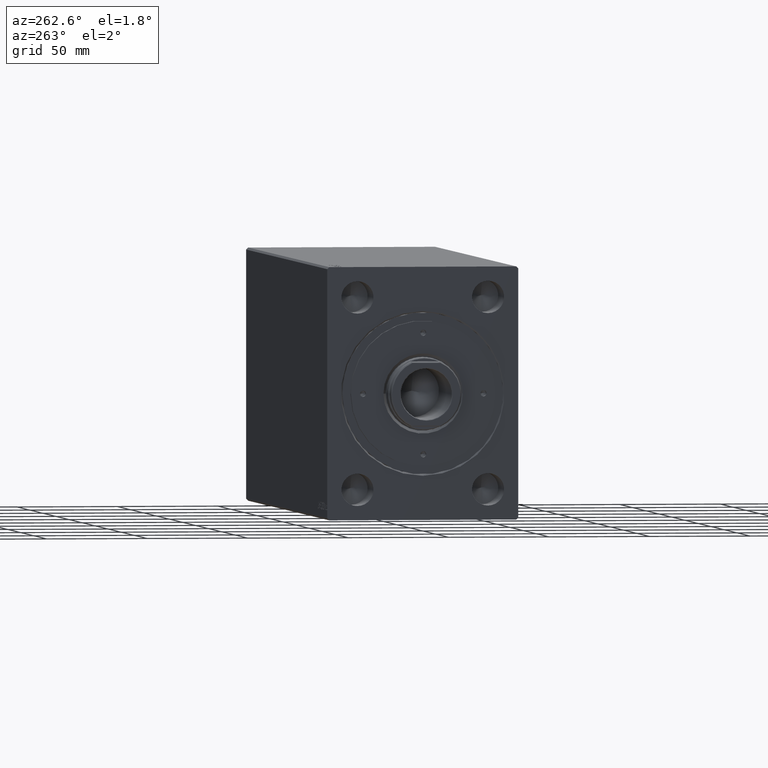
[diagram: clean part render]
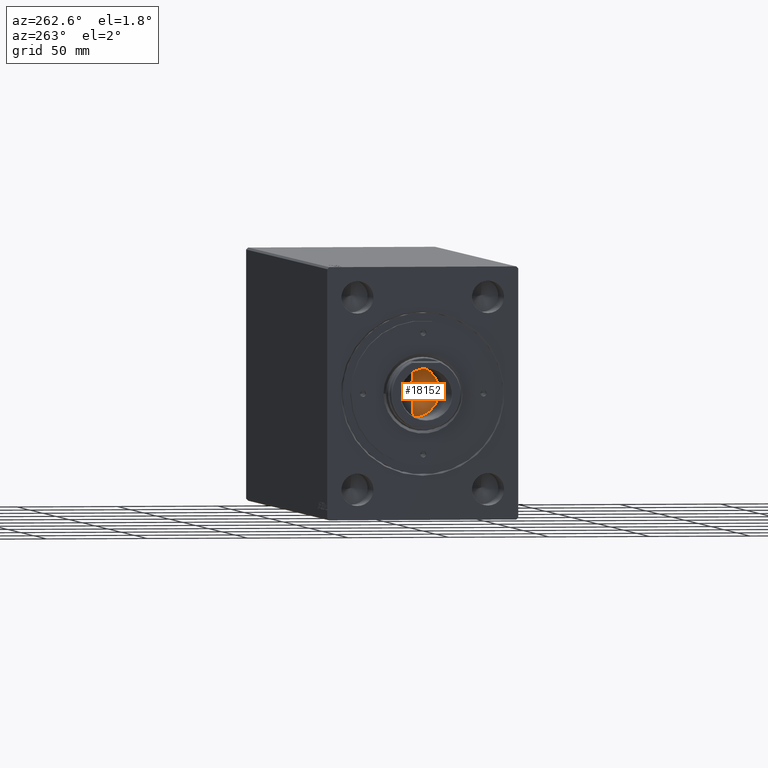
[diagram: same view with one face highlighted and labeled with its STEP entity id]
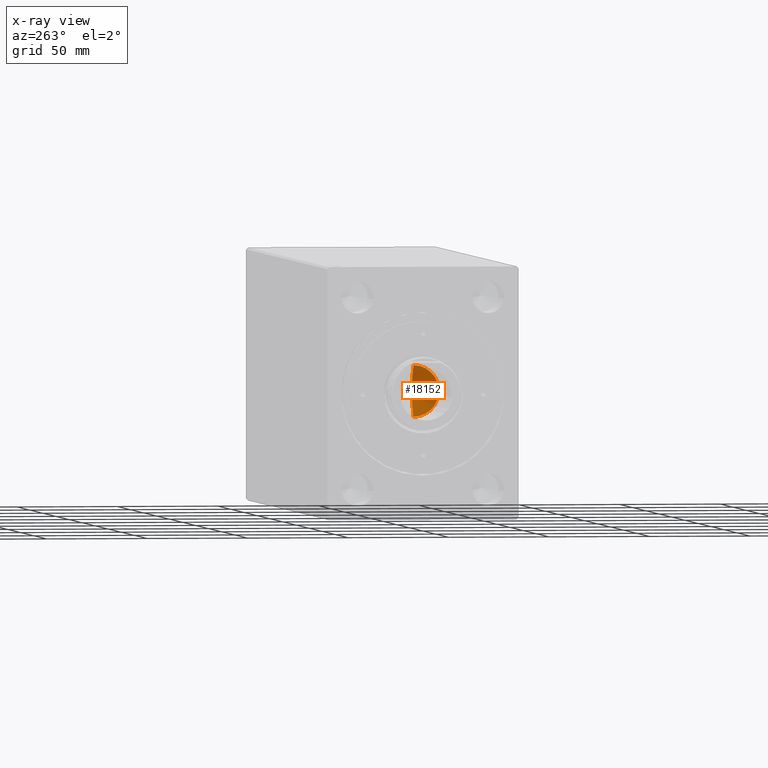
[diagram: x-ray of the same camera — body ghosted, the highlighted face saturated]
A machine part, auxiliary view. The second image highlights one B-rep face of the part: STEP entity #18152.
The next image is the same camera in x-ray: the body ghosted, the highlighted face saturated — about 4% of this face is hidden behind the body in this view.
In plain terms, the highlighted conical surface has half-angle 59 deg.
Its self-contained STEP definition (entity closure, byte-faithful):
#647 = ORIENTED_EDGE ( 'NONE', *, *, #35152, .T. ) ;
#3056 = DIRECTION ( 'NONE',  ( -0.8571673007021110013, 1.049727191138617093E-16, 0.5150380749100563760 ) ) ;
#4078 = CARTESIAN_POINT ( 'NONE',  ( 0.000000000000000000, 0.000000000000000000, 254.2000000000000455 ) ) ;
#4702 = EDGE_CURVE ( 'NONE', #20242, #26478, #23155, .T. ) ;
#5020 = CARTESIAN_POINT ( 'NONE',  ( 12.74999999999999112, 0.000000000000000000, 254.2000000000000455 ) ) ;
#5805 = DIRECTION ( 'NONE',  ( -0.000000000000000000, -0.000000000000000000, 1.000000000000000000 ) ) ;
#6019 = CARTESIAN_POINT ( 'NONE',  ( 0.000000000000000000, 0.000000000000000000, 254.2000000000000455 ) ) ;
#8577 = LINE ( 'NONE', #5020, #34106 ) ;
#8988 = AXIS2_PLACEMENT_3D ( 'NONE', #6019, #5805, #16031 ) ;
#10169 = LINE ( 'NONE', #13725, #25895 ) ;
#10945 = DIRECTION ( 'NONE',  ( 1.000000000000000000, 0.000000000000000000, 0.000000000000000000 ) ) ;
#13725 = CARTESIAN_POINT ( 'NONE',  ( -12.74999999999999112, 1.561424668912874125E-15, 254.2000000000000455 ) ) ;
#14296 = DIRECTION ( 'NONE',  ( -0.000000000000000000, -0.000000000000000000, 1.000000000000000000 ) ) ;
#14727 = FACE_OUTER_BOUND ( 'NONE', #27247, .T. ) ;
#15180 = CARTESIAN_POINT ( 'NONE',  ( -1.307202896762960287E-14, 0.000000000000000000, 246.5390271073986241 ) ) ;
#16031 = DIRECTION ( 'NONE',  ( 1.000000000000000000, 0.000000000000000000, 0.000000000000000000 ) ) ;
#17038 = CARTESIAN_POINT ( 'NONE',  ( -12.74999999999999112, 1.561424668912874125E-15, 254.2000000000000455 ) ) ;
#17801 = ORIENTED_EDGE ( 'NONE', *, *, #4702, .T. ) ;
#18152 = ADVANCED_FACE ( 'NONE', ( #14727 ), #39802, .F. ) ;
#20242 = VERTEX_POINT ( 'NONE', #17038 ) ;
#20815 = VERTEX_POINT ( 'NONE', #15180 ) ;
#21364 = EDGE_CURVE ( 'NONE', #20815, #26478, #8577, .T. ) ;
#21920 = DIRECTION ( 'NONE',  ( 0.8571673007021110013, 0.000000000000000000, 0.5150380749100563760 ) ) ;
#23155 = CIRCLE ( 'NONE', #8988, 12.74999999999999112 ) ;
#25895 = VECTOR ( 'NONE', #3056, 1000.000000000000000 ) ;
#26478 = VERTEX_POINT ( 'NONE', #30635 ) ;
#27247 = EDGE_LOOP ( 'NONE', ( #28459, #647, #17801 ) ) ;
#28459 = ORIENTED_EDGE ( 'NONE', *, *, #21364, .F. ) ;
#30635 = CARTESIAN_POINT ( 'NONE',  ( 12.74999999999999112, 0.000000000000000000, 254.2000000000000455 ) ) ;
#34106 = VECTOR ( 'NONE', #21920, 1000.000000000000000 ) ;
#35152 = EDGE_CURVE ( 'NONE', #20815, #20242, #10169, .T. ) ;
#38417 = AXIS2_PLACEMENT_3D ( 'NONE', #4078, #14296, #10945 ) ;
#39802 = CONICAL_SURFACE ( 'NONE', #38417, 12.74999999999999112, 1.029744258676651869 ) ;